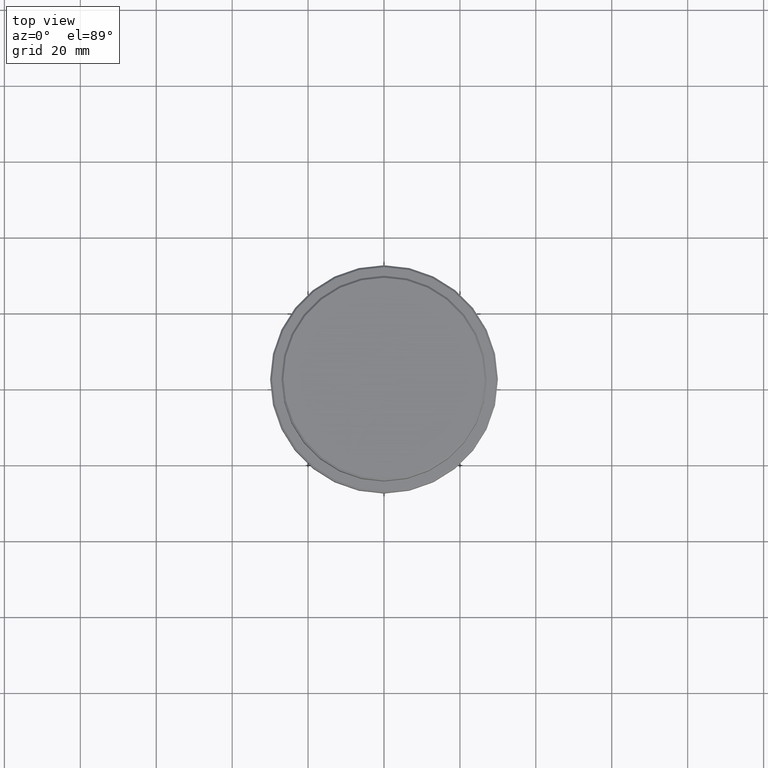
[diagram: clean part render]
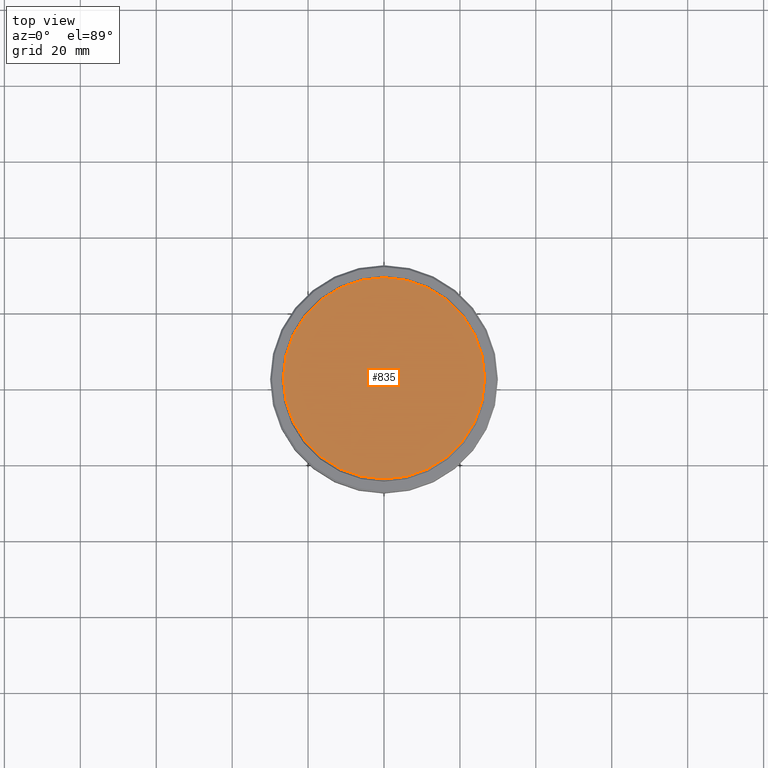
[diagram: same view with one face highlighted and labeled with its STEP entity id]
A machine part, top view. The second image highlights one B-rep face of the part: STEP entity #835.
In plain terms, the highlighted planar face has unit normal (0, -0, 1).
Its self-contained STEP definition (entity closure, byte-faithful):
#7 = ORIENTED_EDGE ( 'NONE', *, *, #683, .T. ) ;
#147 = PLANE ( 'NONE',  #1281 ) ;
#229 = CARTESIAN_POINT ( 'NONE',  ( 0.000000000000000000, 0.000000000000000000, 0.000000000000000000 ) ) ;
#388 = ORIENTED_EDGE ( 'NONE', *, *, #922, .T. ) ;
#457 = DIRECTION ( 'NONE',  ( 0.000000000000000000, -0.000000000000000000, 1.000000000000000000 ) ) ;
#506 = CARTESIAN_POINT ( 'NONE',  ( 0.000000000000000000, 0.000000000000000000, 0.000000000000000000 ) ) ;
#537 = EDGE_LOOP ( 'NONE', ( #7, #388 ) ) ;
#556 = DIRECTION ( 'NONE',  ( -0.000000000000000000, -0.000000000000000000, 1.000000000000000000 ) ) ;
#564 = CIRCLE ( 'NONE', #1026, 26.49999999999999645 ) ;
#585 = CIRCLE ( 'NONE', #770, 26.49999999999999645 ) ;
#668 = VERTEX_POINT ( 'NONE', #1362 ) ;
#683 = EDGE_CURVE ( 'NONE', #668, #1404, #564, .T. ) ;
#770 = AXIS2_PLACEMENT_3D ( 'NONE', #229, #556, #976 ) ;
#835 = ADVANCED_FACE ( 'NONE', ( #1307 ), #147, .T. ) ;
#899 = DIRECTION ( 'NONE',  ( 1.000000000000000000, 0.000000000000000000, 0.000000000000000000 ) ) ;
#922 = EDGE_CURVE ( 'NONE', #1404, #668, #585, .T. ) ;
#926 = DIRECTION ( 'NONE',  ( -0.000000000000000000, -0.000000000000000000, 1.000000000000000000 ) ) ;
#940 = CARTESIAN_POINT ( 'NONE',  ( 26.49999999999999645, 3.275930187719169552E-15, 0.000000000000000000 ) ) ;
#976 = DIRECTION ( 'NONE',  ( 1.000000000000000000, 0.000000000000000000, 0.000000000000000000 ) ) ;
#991 = CARTESIAN_POINT ( 'NONE',  ( 0.000000000000000000, 0.000000000000000000, 0.000000000000000000 ) ) ;
#1026 = AXIS2_PLACEMENT_3D ( 'NONE', #506, #926, #1366 ) ;
#1281 = AXIS2_PLACEMENT_3D ( 'NONE', #991, #457, #899 ) ;
#1307 = FACE_OUTER_BOUND ( 'NONE', #537, .T. ) ;
#1362 = CARTESIAN_POINT ( 'NONE',  ( -26.49999999999999645, 0.000000000000000000, 0.000000000000000000 ) ) ;
#1366 = DIRECTION ( 'NONE',  ( 1.000000000000000000, 0.000000000000000000, 0.000000000000000000 ) ) ;
#1404 = VERTEX_POINT ( 'NONE', #940 ) ;